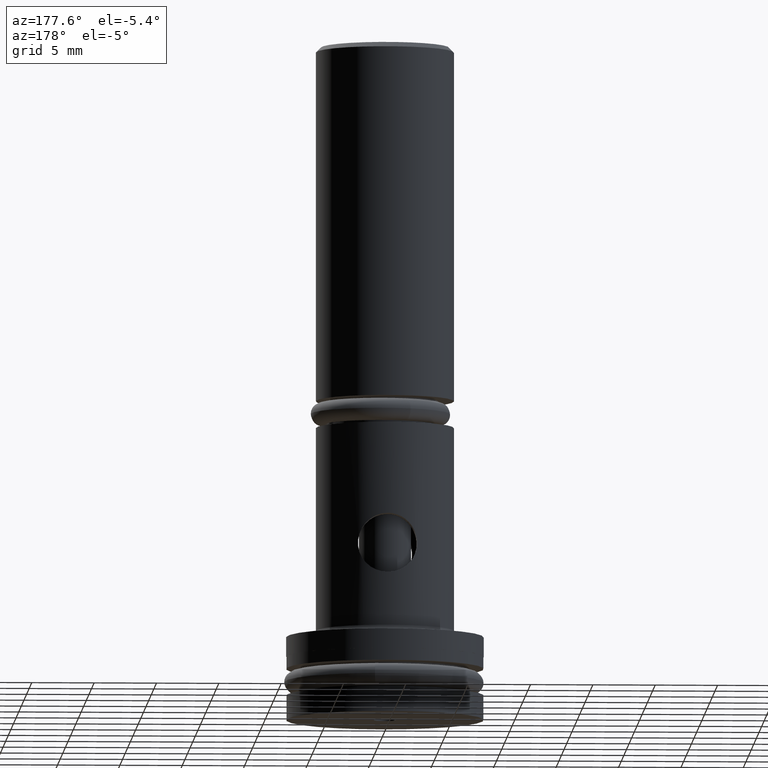
[diagram: clean part render]
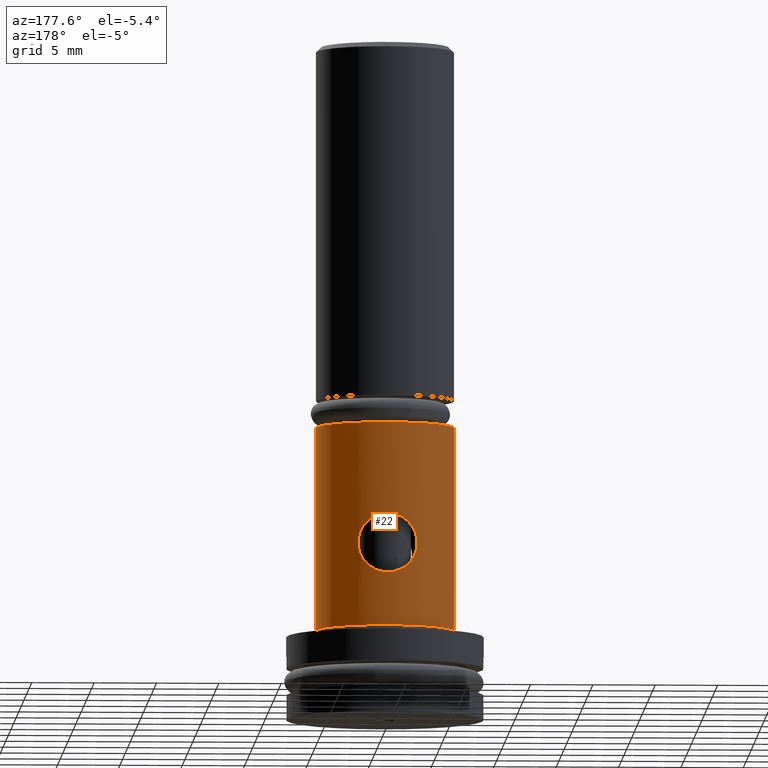
[diagram: same view with one face highlighted and labeled with its STEP entity id]
A machine part, auxiliary view. The second image highlights one B-rep face of the part: STEP entity #22.
In plain terms, the highlighted cylindrical surface (partial cylindrical patch) has radius 5.5372 mm, axis along (-0, -0, -1).
Its self-contained STEP definition (entity closure, byte-faithful):
#22 = ADVANCED_FACE ( 'NONE', ( #345, #346 ), #347, .T. ) ;
#297 = ORIENTED_EDGE ( 'NONE', *, *, #1719, .F. ) ;
#298 = ORIENTED_EDGE ( 'NONE', *, *, #1737, .F. ) ;
#299 = ORIENTED_EDGE ( 'NONE', *, *, #1722, .T. ) ;
#300 = ORIENTED_EDGE ( 'NONE', *, *, #1721, .T. ) ;
#301 = ORIENTED_EDGE ( 'NONE', *, *, #1724, .F. ) ;
#302 = ORIENTED_EDGE ( 'NONE', *, *, #1723, .F. ) ;
#345 = FACE_BOUND ( 'NONE', #1607, .T. ) ;
#346 = FACE_OUTER_BOUND ( 'NONE', #1229, .T. ) ;
#347 = CYLINDRICAL_SURFACE ( 'NONE', #1799, 0.2179999999999999400 ) ;
#572 = CARTESIAN_POINT ( 'NONE',  ( 5.776173739554268400E-017, 0.2179999999999999400, 0.4365000000000000500 ) ) ;
#573 = CARTESIAN_POINT ( 'NONE',  ( 0.006259721269029486400, 0.2179999999999999400, 0.4365000000000000500 ) ) ;
#574 = CARTESIAN_POINT ( 'NONE',  ( 0.01240069687586133900, 0.2177311085204622100, 0.4358778411618705600 ) ) ;
#575 = CARTESIAN_POINT ( 'NONE',  ( 0.02445909192311587400, 0.2167080195167056000, 0.4334534326833052200 ) ) ;
#576 = CARTESIAN_POINT ( 'NONE',  ( 0.03043945942284030300, 0.2159403719809241100, 0.4316181716860276200 ) ) ;
#577 = CARTESIAN_POINT ( 'NONE',  ( 0.04173653117931321000, 0.2140440770176387000, 0.4268916146467999800 ) ) ;
#578 = CARTESIAN_POINT ( 'NONE',  ( 0.04708139270642389100, 0.2129188624680260800, 0.4240103105174606900 ) ) ;
#579 = CARTESIAN_POINT ( 'NONE',  ( 0.05719070672537270700, 0.2104289015275875000, 0.4172196134021480300 ) ) ;
#580 = CARTESIAN_POINT ( 'NONE',  ( 0.06190883854416921000, 0.2090723312406813600, 0.4133264799802011700 ) ) ;
#581 = CARTESIAN_POINT ( 'NONE',  ( 0.07467447731002215000, 0.2050060934696328300, 0.4005416783179767700 ) ) ;
#582 = CARTESIAN_POINT ( 'NONE',  ( 0.08158809161916016900, 0.2022212069930209000, 0.3902587281671723900 ) ) ;
#583 = CARTESIAN_POINT ( 'NONE',  ( 0.08861666733198123000, 0.1991923557366487900, 0.3734347628786849300 ) ) ;
#584 = CARTESIAN_POINT ( 'NONE',  ( 0.09045178901926098600, 0.1983539009988788100, 0.3674708728772609900 ) ) ;
#585 = CARTESIAN_POINT ( 'NONE',  ( 0.09288373158396758000, 0.1972267947954724200, 0.3553677873201892500 ) ) ;
#586 = CARTESIAN_POINT ( 'NONE',  ( 0.09349575555064386400, 0.1969328406230524400, 0.3492497187050969700 ) ) ;
#587 = CARTESIAN_POINT ( 'NONE',  ( 0.09350420088012895100, 0.1969288308999442300, 0.3368779327309248700 ) ) ;
#588 = CARTESIAN_POINT ( 'NONE',  ( 0.09287829482286467900, 0.1972293325402870200, 0.3306010532084250900 ) ) ;
#589 = CARTESIAN_POINT ( 'NONE',  ( 0.09045238108828329600, 0.1983536085352370900, 0.3185361841446750500 ) ) ;
#590 = CARTESIAN_POINT ( 'NONE',  ( 0.08864976778279426400, 0.1991780739147094600, 0.3126450266884653900 ) ) ;
#591 = CARTESIAN_POINT ( 'NONE',  ( 0.08390036848865893600, 0.2012247863057233500, 0.3012755000011435600 ) ) ;
#592 = CARTESIAN_POINT ( 'NONE',  ( 0.08101658513498580200, 0.2024187469512972200, 0.2959337691747152000 ) ) ;
#593 = CARTESIAN_POINT ( 'NONE',  ( 0.07426897839274028400, 0.2049906218166245300, 0.2858770098862807900 ) ) ;
#594 = CARTESIAN_POINT ( 'NONE',  ( 0.07036372912445325300, 0.2063807520894887200, 0.2811322163145804100 ) ) ;
#595 = CARTESIAN_POINT ( 'NONE',  ( 0.06182571937282582700, 0.2090972253124250000, 0.2725993078267131600 ) ) ;
#596 = CARTESIAN_POINT ( 'NONE',  ( 0.05717493750962137500, 0.2104331704353566400, 0.2687683580384500600 ) ) ;
#597 = CARTESIAN_POINT ( 'NONE',  ( 0.04706671947640066200, 0.2129220904848408400, 0.2619812733667909500 ) ) ;
#598 = CARTESIAN_POINT ( 'NONE',  ( 0.04163438634034337400, 0.2140631035751027800, 0.2590602938826131500 ) ) ;
#599 = CARTESIAN_POINT ( 'NONE',  ( 0.02478381725338114900, 0.2168859150680827200, 0.2520263886701643600 ) ) ;
#600 = CARTESIAN_POINT ( 'NONE',  ( 0.01233334331901072800, 0.2179999999999999400, 0.2494999999999999700 ) ) ;
#601 = CARTESIAN_POINT ( 'NONE',  ( 7.264953506391902500E-017, 0.2179999999999999400, 0.2495000000000000000 ) ) ;
#605 = CARTESIAN_POINT ( 'NONE',  ( 0.2179999999999999400, 2.669730022141229300E-017, -0.1109764883442422900 ) ) ;
#606 = DIRECTION ( 'NONE',  ( -0.0000000000000000000, -0.0000000000000000000, -1.000000000000000000 ) ) ;
#607 = CARTESIAN_POINT ( 'NONE',  ( 0.0000000000000000000, 0.0000000000000000000, 0.7250000000000000900 ) ) ;
#608 = DIRECTION ( 'NONE',  ( -0.0000000000000000000, -0.0000000000000000000, -1.000000000000000000 ) ) ;
#609 = DIRECTION ( 'NONE',  ( -1.000000000000000000, 0.0000000000000000000, 0.0000000000000000000 ) ) ;
#610 = CARTESIAN_POINT ( 'NONE',  ( -0.2179999999999999400, 0.0000000000000000000, -0.1109764883442422900 ) ) ;
#611 = DIRECTION ( 'NONE',  ( -0.0000000000000000000, -0.0000000000000000000, -1.000000000000000000 ) ) ;
#612 = CARTESIAN_POINT ( 'NONE',  ( 0.0000000000000000000, 0.0000000000000000000, 0.08199999999999997600 ) ) ;
#613 = DIRECTION ( 'NONE',  ( -0.0000000000000000000, -0.0000000000000000000, -1.000000000000000000 ) ) ;
#614 = DIRECTION ( 'NONE',  ( -1.000000000000000000, 0.0000000000000000000, 0.0000000000000000000 ) ) ;
#703 = CARTESIAN_POINT ( 'NONE',  ( 7.264953506391902500E-017, 0.2179999999999999400, 0.2495000000000000000 ) ) ;
#704 = CARTESIAN_POINT ( 'NONE',  ( -0.006160981580494846000, 0.2180000000000000000, 0.2495000000000000000 ) ) ;
#705 = CARTESIAN_POINT ( 'NONE',  ( -0.01241983700286493200, 0.2177307759522484600, 0.2501228455817433000 ) ) ;
#706 = CARTESIAN_POINT ( 'NONE',  ( -0.02453227449710225500, 0.2167005091271009800, 0.2525644667621777000 ) ) ;
#707 = CARTESIAN_POINT ( 'NONE',  ( -0.03038848952830819300, 0.2159479624316405800, 0.2543632520174958200 ) ) ;
#708 = CARTESIAN_POINT ( 'NONE',  ( -0.04738043650453530700, 0.2130986281828140000, 0.2614642545165382600 ) ) ;
#709 = CARTESIAN_POINT ( 'NONE',  ( -0.05759974096909281600, 0.2104455000766825800, 0.2683545660750305500 ) ) ;
#710 = CARTESIAN_POINT ( 'NONE',  ( -0.07046575697687584800, 0.2063463999182775800, 0.2812449812965434600 ) ) ;
#711 = CARTESIAN_POINT ( 'NONE',  ( -0.07428345525566676400, 0.2049851964683688200, 0.2858975682409041800 ) ) ;
#712 = CARTESIAN_POINT ( 'NONE',  ( -0.08101190254526149900, 0.2024204390418454800, 0.2959278098712212500 ) ) ;
#713 = CARTESIAN_POINT ( 'NONE',  ( -0.08394392319124534300, 0.2012062425340307400, 0.3013726352574104300 ) ) ;
#714 = CARTESIAN_POINT ( 'NONE',  ( -0.08863879957158303500, 0.1991825732485391400, 0.3126259494525504000 ) ) ;
#715 = CARTESIAN_POINT ( 'NONE',  ( -0.09043023071467533300, 0.1983637573609937100, 0.3184523757205353600 ) ) ;
#721 = VERTEX_POINT ( 'NONE', #2123 ) ;
#730 = VERTEX_POINT ( 'NONE', #2131 ) ;
#752 = VERTEX_POINT ( 'NONE', #2148 ) ;
#767 = VERTEX_POINT ( 'NONE', #2163 ) ;
#799 = VERTEX_POINT ( 'NONE', #2184 ) ;
#810 = DIRECTION ( 'NONE',  ( -0.0000000000000000000, -0.0000000000000000000, -1.000000000000000000 ) ) ;
#811 = DIRECTION ( 'NONE',  ( -1.000000000000000000, 0.0000000000000000000, 0.0000000000000000000 ) ) ;
#823 = VERTEX_POINT ( 'NONE', #2196 ) ;
#831 = CARTESIAN_POINT ( 'NONE',  ( 0.0000000000000000000, 0.0000000000000000000, -0.1109764883442422900 ) ) ;
#855 = CARTESIAN_POINT ( 'NONE',  ( -0.09286949712584226200, 0.1972335249522093600, 0.3305312795977956000 ) ) ;
#856 = CARTESIAN_POINT ( 'NONE',  ( -0.09349780920067521400, 0.1969318655792509400, 0.3368019501072526700 ) ) ;
#857 = CARTESIAN_POINT ( 'NONE',  ( -0.09350436398201517100, 0.1969287534610398000, 0.3552966868511094900 ) ) ;
#858 = CARTESIAN_POINT ( 'NONE',  ( -0.09099506546717844900, 0.1981667652104643600, 0.3677209065118323100 ) ) ;
#859 = CARTESIAN_POINT ( 'NONE',  ( -0.08394857713141269700, 0.2012043205076622400, 0.3846188681627330000 ) ) ;
#860 = CARTESIAN_POINT ( 'NONE',  ( -0.08101812877566211300, 0.2024181159622045800, 0.3900634613013411200 ) ) ;
#861 = CARTESIAN_POINT ( 'NONE',  ( -0.07427192847337980900, 0.2049895399791009100, 0.4001190617991732800 ) ) ;
#862 = CARTESIAN_POINT ( 'NONE',  ( -0.07044664284444449000, 0.2063530027462544500, 0.4047771029010007200 ) ) ;
#863 = CARTESIAN_POINT ( 'NONE',  ( -0.05757016169388616500, 0.2104538937732767200, 0.4176691784213145100 ) ) ;
#864 = CARTESIAN_POINT ( 'NONE',  ( -0.04744656079448008500, 0.2130866216410647100, 0.4245054967966635000 ) ) ;
#865 = CARTESIAN_POINT ( 'NONE',  ( -0.03038072721594852600, 0.2159497222207908100, 0.4316412965194775200 ) ) ;
#866 = CARTESIAN_POINT ( 'NONE',  ( -0.02452858747633939900, 0.2166998241482695500, 0.4334338312016415300 ) ) ;
#867 = CARTESIAN_POINT ( 'NONE',  ( -0.01249489377742143100, 0.2177253844157045200, 0.4358644553038586400 ) ) ;
#868 = CARTESIAN_POINT ( 'NONE',  ( -0.006253945331770022400, 0.2180000000000000300, 0.4365000000000001100 ) ) ;
#869 = CARTESIAN_POINT ( 'NONE',  ( 5.776173739554268400E-017, 0.2179999999999999400, 0.4365000000000000500 ) ) ;
#1229 = EDGE_LOOP ( 'NONE', ( #299, #300, #301, #302 ) ) ;
#1472 = LINE ( 'NONE', #605, #1474 ) ;
#1474 = VECTOR ( 'NONE', #606, 39.37007874015748100 ) ;
#1475 = LINE ( 'NONE', #610, #1477 ) ;
#1476 = CIRCLE ( 'NONE', #1930, 0.2179999999999998900 ) ;
#1477 = VECTOR ( 'NONE', #611, 39.37007874015748100 ) ;
#1478 = CIRCLE ( 'NONE', #1931, 0.2179999999999999700 ) ;
#1587 = B_SPLINE_CURVE_WITH_KNOTS ( 'NONE', 3,
 ( #703, #704, #705, #706, #707, #708, #709, #710, #711, #712, #713, #714, #715, #855, #856, #857, #858, #859, #860, #861, #862, #863, #864, #865, #866, #867, #868, #869 ),
 .UNSPECIFIED., .F., .F.,
 ( 4, 2, 2, 2, 2, 2, 2, 2, 2, 2, 2, 2, 2, 4 ),
 ( 0.007517341660322096800, 0.007986741991456786800, 0.008456142322591475900, 0.009394942984860855900, 0.009864343315995545100, 0.01033374364713023400, 0.01080314397826492500, 0.01127254430939961400, 0.01221134497166899400, 0.01268074530280368200, 0.01315014563393836700, 0.01408894629620774200, 0.01455834662734243100, 0.01502774695847712000 ),
 .UNSPECIFIED. ) ;
#1591 = B_SPLINE_CURVE_WITH_KNOTS ( 'NONE', 3,
 ( #572, #573, #574, #575, #576, #577, #578, #579, #580, #581, #582, #583, #584, #585, #586, #587, #588, #589, #590, #591, #592, #593, #594, #595, #596, #597, #598, #599, #600, #601 ),
 .UNSPECIFIED., .F., .F.,
 ( 4, 2, 2, 2, 2, 2, 2, 2, 2, 2, 2, 2, 2, 2, 4 ),
 ( 3.565902793285432900E-019, 0.0004698338537701296400, 0.0009396677075402588500, 0.001409501561310388600, 0.001879335415080518300, 0.002819003122620780800, 0.003288836976390912800, 0.003758670830161044500, 0.004228504683931175700, 0.004698338537701307800, 0.005168172391471439900, 0.005638006245241571100, 0.006107840099011703100, 0.006577673952781834400, 0.007517341660322096800 ),
 .UNSPECIFIED. ) ;
#1607 = EDGE_LOOP ( 'NONE', ( #297, #298 ) ) ;
#1719 = EDGE_CURVE ( 'NONE', #799, #823, #1591, .T. ) ;
#1721 = EDGE_CURVE ( 'NONE', #730, #767, #1472, .T. ) ;
#1722 = EDGE_CURVE ( 'NONE', #752, #730, #1476, .T. ) ;
#1723 = EDGE_CURVE ( 'NONE', #752, #721, #1475, .T. ) ;
#1724 = EDGE_CURVE ( 'NONE', #721, #767, #1478, .T. ) ;
#1737 = EDGE_CURVE ( 'NONE', #823, #799, #1587, .T. ) ;
#1799 = AXIS2_PLACEMENT_3D ( 'NONE', #831, #810, #811 ) ;
#1930 = AXIS2_PLACEMENT_3D ( 'NONE', #607, #608, #609 ) ;
#1931 = AXIS2_PLACEMENT_3D ( 'NONE', #612, #613, #614 ) ;
#2123 = CARTESIAN_POINT ( 'NONE',  ( -0.2179999999999999700, 0.0000000000000000000, 0.08199999999999997600 ) ) ;
#2131 = CARTESIAN_POINT ( 'NONE',  ( 0.2179999999999998900, 2.669730022141229300E-017, 0.7250000000000000900 ) ) ;
#2148 = CARTESIAN_POINT ( 'NONE',  ( -0.2179999999999998900, 0.0000000000000000000, 0.7250000000000000900 ) ) ;
#2163 = CARTESIAN_POINT ( 'NONE',  ( 0.2179999999999999700, 2.792194702055965300E-017, 0.08199999999999997600 ) ) ;
#2184 = CARTESIAN_POINT ( 'NONE',  ( 5.776173739554268400E-017, 0.2179999999999999400, 0.4365000000000000500 ) ) ;
#2196 = CARTESIAN_POINT ( 'NONE',  ( 7.264953506391902500E-017, 0.2179999999999999400, 0.2495000000000000000 ) ) ;